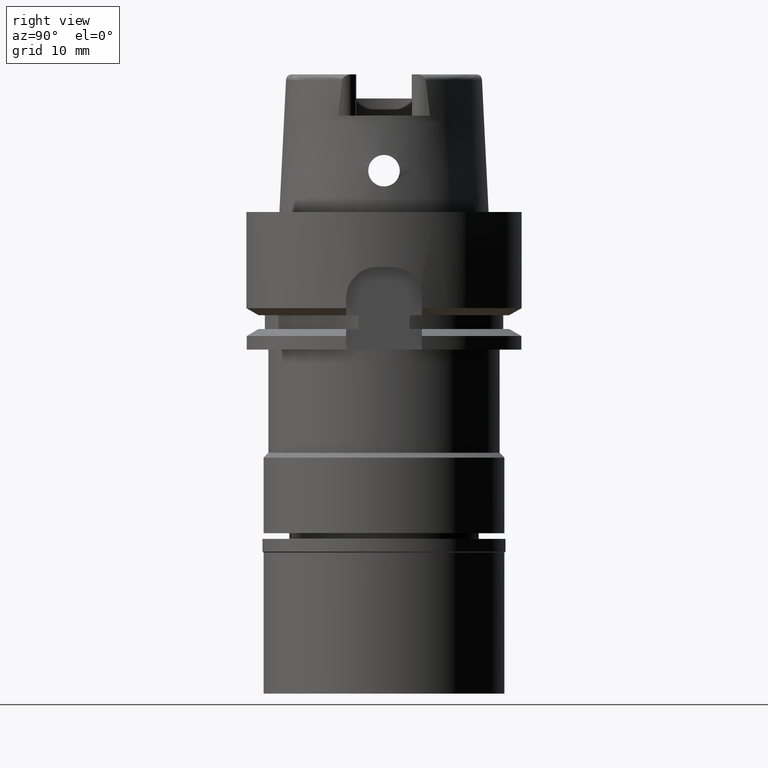
[diagram: clean part render]
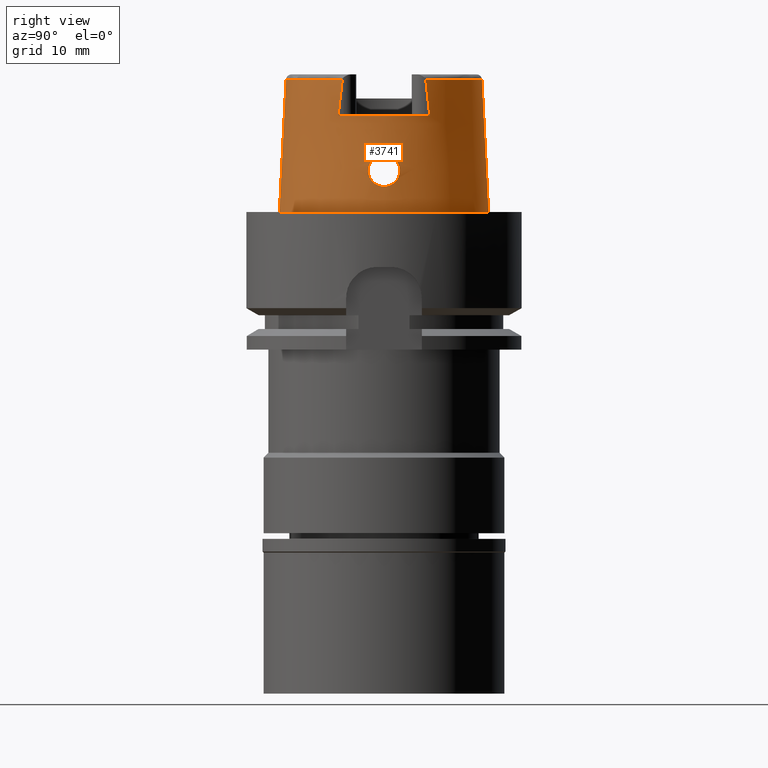
[diagram: same view with one face highlighted and labeled with its STEP entity id]
A machine part, right view. The second image highlights one B-rep face of the part: STEP entity #3741.
In plain terms, the highlighted conical surface has half-angle 2.862 deg.
Its self-contained STEP definition (entity closure, byte-faithful):
#15 = CARTESIAN_POINT ( 'NONE',  ( 14.70427633960028757, 2.242764913340043353, 6.515404003454786874 ) ) ;
#35 = CARTESIAN_POINT ( 'NONE',  ( 14.76237129641157964, 1.005064328801288154, 8.069065966582551042 ) ) ;
#38 = ORIENTED_EDGE ( 'NONE', *, *, #407, .T. ) ;
#58 = CARTESIAN_POINT ( 'NONE',  ( 14.73565761546348796, 1.519454258623613496, 7.727042433410189481 ) ) ;
#62 = B_SPLINE_CURVE_WITH_KNOTS ( 'NONE', 3,
 ( #1196, #2445, #2013, #2802 ),
 .UNSPECIFIED., .F., .F.,
 ( 4, 4 ),
 ( 0.0000000000000000000, 1.000000000000000000 ),
 .UNSPECIFIED. ) ;
#95 = VERTEX_POINT ( 'NONE', #1058 ) ;
#124 = CARTESIAN_POINT ( 'NONE',  ( 14.73733817633101140, -1.491312462989942578, 7.752623123807434347 ) ) ;
#151 = CARTESIAN_POINT ( 'NONE',  ( 14.75365000359263945, -1.190263404321819651, 7.968170412005450842 ) ) ;
#155 = ORIENTED_EDGE ( 'NONE', *, *, #4428, .F. ) ;
#203 = CARTESIAN_POINT ( 'NONE',  ( 14.78499286951999636, -0.1391756145703256231, 8.299999999999998934 ) ) ;
#212 = VERTEX_POINT ( 'NONE', #5254 ) ;
#227 = CARTESIAN_POINT ( 'NONE',  ( 14.74944561823880029, -1.271773632072639160, 7.916402736103134608 ) ) ;
#256 = CARTESIAN_POINT ( 'NONE',  ( 14.91210751178380711, -1.507814773154234622, 4.254671185857885618 ) ) ;
#280 = CARTESIAN_POINT ( 'NONE',  ( 14.97210884702021794, 0.9853782908212629366, 3.918270532093401037 ) ) ;
#283 = CARTESIAN_POINT ( 'NONE',  ( 14.70531919359189388, -2.060537223936308227, 7.022424985088719929 ) ) ;
#300 = EDGE_CURVE ( 'NONE', #4495, #1118, #62, .T. ) ;
#311 = CARTESIAN_POINT ( 'NONE',  ( 14.70192435888373339, -2.185227616521955962, 6.733823491999718414 ) ) ;
#316 = CARTESIAN_POINT ( 'NONE',  ( 0.0000000000000000000, 1.342457523729000028E-14, 14.00000000000000000 ) ) ;
#337 = CARTESIAN_POINT ( 'NONE',  ( 14.83206954418928092, -1.956184319801783644, 4.789992111342566083 ) ) ;
#364 = CARTESIAN_POINT ( 'NONE',  ( 14.70905000973601062, -1.978086552011957933, 7.175936672938100891 ) ) ;
#388 = CARTESIAN_POINT ( 'NONE',  ( 14.70295118534162349, 2.139958611321871373, 6.843012620761741438 ) ) ;
#407 = EDGE_CURVE ( 'NONE', #95, #4495, #3769, .T. ) ;
#416 = CARTESIAN_POINT ( 'NONE',  ( 14.79652018146324188, 2.108368993487279575, 5.080678015603461439 ) ) ;
#445 = CARTESIAN_POINT ( 'NONE',  ( 14.74806480030290601, 1.297723455499729450, 7.898929941508271213 ) ) ;
#501 = DIRECTION ( 'NONE',  ( 0.0000000000000000000, 1.000000000000000000, 0.0000000000000000000 ) ) ;
#536 = CARTESIAN_POINT ( 'NONE',  ( 14.77224878652673112, -0.7505141186887123173, 8.174747007063599469 ) ) ;
#587 = CARTESIAN_POINT ( 'NONE',  ( 14.76993064239802500, -0.8163392600609616911, 8.150418802496492532 ) ) ;
#644 = CARTESIAN_POINT ( 'NONE',  ( 0.0000000000000000000, -14.23797715755999782, 19.23995141520000018 ) ) ;
#668 = CARTESIAN_POINT ( 'NONE',  ( 15.01500049747999910, 0.0000000000000000000, 3.700000000000000178 ) ) ;
#688 = CIRCLE ( 'NONE', #2456, 15.20000663301000010 ) ;
#692 = DIRECTION ( 'NONE',  ( 0.0000000000000000000, 0.0000000000000000000, 1.000000000000000000 ) ) ;
#701 = CARTESIAN_POINT ( 'NONE',  ( 14.77765626216125128, -2.177348013164218887, 5.257069935556764939 ) ) ;
#716 = CIRCLE ( 'NONE', #1421, 14.23797715756000315 ) ;
#727 = CARTESIAN_POINT ( 'NONE',  ( 14.90604676839035037, 1.540011574347540879, 4.291541944447614831 ) ) ;
#749 = CARTESIAN_POINT ( 'NONE',  ( 14.85941152871392212, 1.821130860984883526, 4.593162639233087319 ) ) ;
#752 = CARTESIAN_POINT ( 'NONE',  ( 14.71959265609127954, -2.299973879154861844, 6.035955912776645782 ) ) ;
#776 = CARTESIAN_POINT ( 'NONE',  ( 14.71337117006120287, 1.896365627165534695, 7.303614320927451331 ) ) ;
#778 = CARTESIAN_POINT ( 'NONE',  ( 14.70278707568186682, -2.228687130090102997, 6.587634668131774340 ) ) ;
#784 = CARTESIAN_POINT ( 'NONE',  ( 12.88000000001000167, 6.659963896840999986, 14.00000000000000000 ) ) ;
#806 = CARTESIAN_POINT ( 'NONE',  ( 14.70428665209208496, 2.078673823741274074, 6.992028626465385699 ) ) ;
#830 = CARTESIAN_POINT ( 'NONE',  ( 14.79464834163354325, 2.115599261166682510, 5.097413402629714874 ) ) ;
#851 = FACE_OUTER_BOUND ( 'NONE', #2405, .T. ) ;
#856 = CARTESIAN_POINT ( 'NONE',  ( 14.74847080173831948, 1.290130044920848151, 7.904097045032973057 ) ) ;
#883 = CARTESIAN_POINT ( 'NONE',  ( 14.78499286951999814, 0.2788160877141728777, 8.300000000000004263 ) ) ;
#940 = CARTESIAN_POINT ( 'NONE',  ( 14.75792287674205028, -1.102787470605057552, 8.018733999658982370 ) ) ;
#975 = CARTESIAN_POINT ( 'NONE',  ( 0.0000000000000000000, 14.23797715755999782, 19.23995141520000018 ) ) ;
#1024 = CARTESIAN_POINT ( 'NONE',  ( 14.77731901309395113, -0.5814282938311156057, 8.226675195045524802 ) ) ;
#1058 = CARTESIAN_POINT ( 'NONE',  ( 12.88000000001000167, 6.659963896840999986, 14.00000000000000000 ) ) ;
#1081 = CARTESIAN_POINT ( 'NONE',  ( 14.77214367936816330, -2.195485303206906824, 5.313436087996452173 ) ) ;
#1107 = CARTESIAN_POINT ( 'NONE',  ( 14.93864860366979030, 1.297535571089779349, 4.099461658573544831 ) ) ;
#1109 = CARTESIAN_POINT ( 'NONE',  ( 14.84908536394946843, -1.873857377694586823, 4.664199259538155395 ) ) ;
#1110 = DIRECTION ( 'NONE',  ( 0.9046212760392207120, -0.4262163147243098749, 0.0000000000000000000 ) ) ;
#1114 = CARTESIAN_POINT ( 'NONE',  ( 12.88001670702532309, 6.461541544693172767, 15.82237498387015151 ) ) ;
#1118 = VERTEX_POINT ( 'NONE', #1475 ) ;
#1135 = CARTESIAN_POINT ( 'NONE',  ( 14.90245146643532337, 1.564186574225916448, 4.313532941992140657 ) ) ;
#1139 = CARTESIAN_POINT ( 'NONE',  ( 14.97807143272082087, -0.9089475989131183820, 3.887209802366227152 ) ) ;
#1161 = ORIENTED_EDGE ( 'NONE', *, *, #2483, .T. ) ;
#1167 = CARTESIAN_POINT ( 'NONE',  ( 14.71779329819516668, -2.299087319909310256, 6.074385008131913288 ) ) ;
#1190 = CARTESIAN_POINT ( 'NONE',  ( 14.72897698920656850, 1.629411162252924816, 7.623274758275104368 ) ) ;
#1192 = CARTESIAN_POINT ( 'NONE',  ( 14.79076017643395957, -2.130234140995594494, 5.132725120408807129 ) ) ;
#1196 = CARTESIAN_POINT ( 'NONE',  ( 12.88000000001000167, -6.659963896840999986, 14.00000000000000000 ) ) ;
#1221 = CARTESIAN_POINT ( 'NONE',  ( 14.72851255932737757, 1.637138559092018886, 7.615484661230349950 ) ) ;
#1248 = CARTESIAN_POINT ( 'NONE',  ( 14.72270127388764926, 1.734450797324273985, 7.511579447753967465 ) ) ;
#1271 = CARTESIAN_POINT ( 'NONE',  ( 14.74608431558002231, 1.334530998691152659, 7.873384040785619931 ) ) ;
#1300 = CARTESIAN_POINT ( 'NONE',  ( 14.76710375349723670, 0.8909825969301189419, 8.120416373802415322 ) ) ;
#1308 = CARTESIAN_POINT ( 'NONE',  ( 0.0000000000000000000, -14.23797715755999782, 19.23995141520000018 ) ) ;
#1345 = EDGE_CURVE ( 'NONE', #212, #4934, #3778, .T. ) ;
#1390 = CARTESIAN_POINT ( 'NONE',  ( 14.77403021748278711, -0.6940870227041476825, 8.193120727681970195 ) ) ;
#1409 = AXIS2_PLACEMENT_3D ( 'NONE', #4226, #4684, #501 ) ;
#1421 = AXIS2_PLACEMENT_3D ( 'NONE', #4948, #2855, #1110 ) ;
#1426 = CARTESIAN_POINT ( 'NONE',  ( 14.74980961183667993, -1.264887640985278061, 7.920966464290619236 ) ) ;
#1449 = CARTESIAN_POINT ( 'NONE',  ( 14.72894958168758883, -1.629870767956382638, 7.622812772376184931 ) ) ;
#1475 = CARTESIAN_POINT ( 'NONE',  ( 12.87999235482999794, -6.068467468384000085, 19.23976215321999916 ) ) ;
#1476 = CARTESIAN_POINT ( 'NONE',  ( 14.76871161833036084, -0.8492265415387453276, 8.137520403994860985 ) ) ;
#1502 = CARTESIAN_POINT ( 'NONE',  ( 15.00363948524310409, 0.5093489953450062169, 3.755865049602545191 ) ) ;
#1504 = CARTESIAN_POINT ( 'NONE',  ( 14.81755823113681103, -2.021972739957513365, 4.903166805378700310 ) ) ;
#1528 = CARTESIAN_POINT ( 'NONE',  ( 14.99023704111988131, 0.7471086059046764261, 3.824125380208783564 ) ) ;
#1530 = CARTESIAN_POINT ( 'NONE',  ( 14.75511519428891916, -2.246327419094103828, 5.500375478184067468 ) ) ;
#1557 = CARTESIAN_POINT ( 'NONE',  ( 14.97618292910479454, -0.9317931712362607088, 3.897086156092339770 ) ) ;
#1576 = AXIS2_PLACEMENT_3D ( 'NONE', #316, #3649, #2361 ) ;
#1613 = CARTESIAN_POINT ( 'NONE',  ( 14.78748923745487076, -2.142316646971053284, 5.162992399265044163 ) ) ;
#1635 = CARTESIAN_POINT ( 'NONE',  ( 14.70880742522512286, 2.286018873315687205, 6.294381867631251737 ) ) ;
#1659 = CARTESIAN_POINT ( 'NONE',  ( 14.78499286951999991, -6.884507511411997731E-14, 8.300000000000000711 ) ) ;
#1663 = AXIS2_PLACEMENT_3D ( 'NONE', #2080, #2055, #4195 ) ;
#1668 = CARTESIAN_POINT ( 'NONE',  ( 14.70267205877295780, 2.191728434256521307, 6.698411382279790161 ) ) ;
#1697 = CARTESIAN_POINT ( 'NONE',  ( 14.72911174276449309, 2.296055618505050244, 5.860793903541034133 ) ) ;
#1720 = CARTESIAN_POINT ( 'NONE',  ( 14.76638081780257927, 0.9092272961312098944, 8.112680116027064514 ) ) ;
#1747 = CARTESIAN_POINT ( 'NONE',  ( 14.81265457374395211, 2.042544949903074780, 4.941961106569924489 ) ) ;
#1811 = CARTESIAN_POINT ( 'NONE',  ( 14.72916990477435562, -1.626338018535341323, 7.626355012096240671 ) ) ;
#1838 = CARTESIAN_POINT ( 'NONE',  ( 14.72894415434752879, -1.629958609940861169, 7.622724539448741510 ) ) ;
#1869 = CARTESIAN_POINT ( 'NONE',  ( 14.72949350683535563, -1.621146774688946746, 7.631535178453624724 ) ) ;
#1921 = CARTESIAN_POINT ( 'NONE',  ( 14.76781662056637501, -0.8727020751864694725, 8.128007703535027773 ) ) ;
#1922 = CARTESIAN_POINT ( 'NONE',  ( 0.0000000000000000000, -15.20000663301000010, 1.527666881883999820E-13 ) ) ;
#1977 = CARTESIAN_POINT ( 'NONE',  ( 14.96044055602670042, 1.107340051846581908, 3.978521285920225470 ) ) ;
#1979 = CARTESIAN_POINT ( 'NONE',  ( 14.71466829626354489, -2.295563337640382784, 6.147392662245807493 ) ) ;
#1991 = B_SPLINE_CURVE_WITH_KNOTS ( 'NONE', 3,
 ( #3613, #3226, #5277, #1502, #5307, #4063, #1528, #5382, #4912, #3198, #4971, #280, #1977, #1107, #3174, #4857, #3642, #727, #1135, #2828, #3669, #2852, #4521, #2034, #749, #2439, #4112, #3699, #1747, #3386, #4623, #416, #830, #4548, #2496, #2144, #4171, #5407, #1697, #4600, #2907, #3723, #1635, #15, #3364, #1668, #3307, #2548, #388, #2086, #4996, #806, #3780, #776, #2061, #4578, #1248, #3750, #3836, #5052, #1221, #3413, #4247, #3812, #1190, #2167, #58, #5434, #3341, #2879, #5078, #1271, #5030, #445, #856, #2955, #2466, #4225, #2931, #35, #2519, #4199, #1720, #2115, #1300, #2983, #4654, #883, #2575 ),
 .UNSPECIFIED., .F., .F.,
 ( 4, 2, 2, 1, 1, 2, 2, 2, 2, 2, 1, 2, 2, 2, 2, 2, 1, 2, 2, 2, 2, 2, 2, 2, 2, 1, 1, 2, 2, 2, 2, 1, 1, 1, 1, 1, 2, 2, 2, 2, 2, 1, 1, 2, 2, 2, 2, 1, 1, 2, 2, 4 ),
 ( 0.0000000000000000000, 0.06250000000001444678, 0.09375000000002173262, 0.1093750000000253686, 0.1171875000000271727, 0.1210937500000280748, 0.1250000000000289768, 0.1875000000000427713, 0.2187500000000497657, 0.2343750000000532907, 0.2421875000000550116, 0.2460937500000557332, 0.2500000000000564548, 0.2812500000000622835, 0.3125000000000680567, 0.3437500000000738298, 0.3593750000000767164, 0.3671875000000782152, 0.3750000000000796585, 0.4375000000000913158, 0.4687500000000970890, 0.4843750000000999756, 0.5000000000001028067, 0.5625000000001144640, 0.5937500000001202372, 0.6093750000001230127, 0.6171875000001242340, 0.6210937500001250111, 0.6250000000001257883, 0.6875000000001360023, 0.7187500000001411093, 0.7343750000001435518, 0.7421875000001446621, 0.7460937500001452172, 0.7480468750001454392, 0.7490234375001454392, 0.7495117187501454392, 0.7500000000001454392, 0.7812500000001246780, 0.7968750000001142419, 0.8046875000001090239, 0.8085937500001064704, 0.8105468750001051381, 0.8115234375001044720, 0.8125000000001038059, 0.8437500000000821565, 0.8593750000000711653, 0.8671875000000658362, 0.8710937500000635048, 0.8730468750000623945, 0.8750000000000612843, 1.000000000000000000 ),
 .UNSPECIFIED. ) ;
#2008 = CARTESIAN_POINT ( 'NONE',  ( 14.88469463431914086, -1.675465527418685818, 4.424106824297659557 ) ) ;
#2013 = CARTESIAN_POINT ( 'NONE',  ( 12.87998480870661488, -6.264498832802251727, 17.56875153365083975 ) ) ;
#2034 = CARTESIAN_POINT ( 'NONE',  ( 14.87667304032492410, 1.724871442453030923, 4.476672235042254755 ) ) ;
#2037 = CARTESIAN_POINT ( 'NONE',  ( 14.82860992875789208, -1.972230638254820700, 4.816480848215509702 ) ) ;
#2044 = CARTESIAN_POINT ( 'NONE',  ( 12.88000426036586887, 6.264427330854289266, 17.56902547863803221 ) ) ;
#2055 = DIRECTION ( 'NONE',  ( 0.0000000000000000000, 0.0000000000000000000, -1.000000000000000000 ) ) ;
#2061 = CARTESIAN_POINT ( 'NONE',  ( 14.71591554278349179, 1.851024872962783618, 7.367622282205414486 ) ) ;
#2063 = CARTESIAN_POINT ( 'NONE',  ( 14.70731352311811335, -2.271682336033174820, 6.367490912690039195 ) ) ;
#2080 = CARTESIAN_POINT ( 'NONE',  ( 0.0000000000000000000, 1.342457523729000028E-14, 9.619975707600000092 ) ) ;
#2086 = CARTESIAN_POINT ( 'NONE',  ( 14.70308256921508061, 2.132808860322839006, 6.860941056206876887 ) ) ;
#2115 = CARTESIAN_POINT ( 'NONE',  ( 14.76681654524219134, 0.8982567174901365803, 8.117345143288064335 ) ) ;
#2144 = CARTESIAN_POINT ( 'NONE',  ( 14.74370730846496436, 2.273485309352225148, 5.643646729477820756 ) ) ;
#2167 = CARTESIAN_POINT ( 'NONE',  ( 14.73066773661700957, 1.603002533144479047, 7.651075444105355672 ) ) ;
#2216 = VECTOR ( 'NONE', #3073, 1000.000000000000227 ) ;
#2228 = CARTESIAN_POINT ( 'NONE',  ( 14.74916473909279446, -1.277077397323025387, 7.912876191129118553 ) ) ;
#2252 = CARTESIAN_POINT ( 'NONE',  ( 14.75627668339521215, -1.137262425045223235, 7.999580242457444257 ) ) ;
#2275 = CARTESIAN_POINT ( 'NONE',  ( 14.78353118258170085, -0.2843049012622392846, 8.287342475517155194 ) ) ;
#2331 = CARTESIAN_POINT ( 'NONE',  ( 14.75065032297800549, -1.248876159167588096, 7.931454445034910705 ) ) ;
#2355 = CARTESIAN_POINT ( 'NONE',  ( 14.96725057751258348, -1.032134887418608926, 3.944290136861687390 ) ) ;
#2361 = DIRECTION ( 'NONE',  ( 0.8882768779220027167, 0.4593083802296007434, 0.0000000000000000000 ) ) ;
#2387 = CARTESIAN_POINT ( 'NONE',  ( 14.79801672291820402, -2.103023503670073957, 5.066545273763508384 ) ) ;
#2405 = EDGE_LOOP ( 'NONE', ( #2948, #5432, #1161, #3294, #155, #5232, #4091, #38 ) ) ;
#2414 = CARTESIAN_POINT ( 'NONE',  ( 15.00350684704980075, -0.5889710121722295799, 3.754705037256619971 ) ) ;
#2439 = CARTESIAN_POINT ( 'NONE',  ( 14.85052550205100630, 1.867320722930483567, 4.655168218427476745 ) ) ;
#2441 = CARTESIAN_POINT ( 'NONE',  ( 14.71324047747436126, -2.292924399370714017, 6.183994065468948698 ) ) ;
#2445 = CARTESIAN_POINT ( 'NONE',  ( 12.87999628661345497, -6.461605141698388621, 15.82216425344745758 ) ) ;
#2446 = CARTESIAN_POINT ( 'NONE',  ( 12.88000642478999858, 6.068395837171999929, 19.23995141520000018 ) ) ;
#2456 = AXIS2_PLACEMENT_3D ( 'NONE', #2735, #692, #4079 ) ;
#2461 = FACE_BOUND ( 'NONE', #3546, .T. ) ;
#2466 = CARTESIAN_POINT ( 'NONE',  ( 14.75280450724634917, 1.208753978509257143, 7.958772445188317946 ) ) ;
#2483 = EDGE_CURVE ( 'NONE', #2972, #2486, #5251, .T. ) ;
#2486 = VERTEX_POINT ( 'NONE', #1922 ) ;
#2487 = CARTESIAN_POINT ( 'NONE',  ( 0.0000000000000000000, 15.20000663301000010, 5.684341886080998387E-14 ) ) ;
#2496 = CARTESIAN_POINT ( 'NONE',  ( 14.76150517817750796, 2.230989088431663436, 5.420707234372980743 ) ) ;
#2519 = CARTESIAN_POINT ( 'NONE',  ( 14.76436978913754494, 0.9582207790518214585, 8.090959112074665782 ) ) ;
#2545 = VERTEX_POINT ( 'NONE', #3124 ) ;
#2548 = CARTESIAN_POINT ( 'NONE',  ( 14.70277955824855809, 2.150504096205838600, 6.816077247885977464 ) ) ;
#2575 = CARTESIAN_POINT ( 'NONE',  ( 14.78499286951999991, -6.884507511411997731E-14, 8.300000000000000711 ) ) ;
#2598 = EDGE_CURVE ( 'NONE', #1118, #2972, #716, .T. ) ;
#2666 = CARTESIAN_POINT ( 'NONE',  ( 14.72981229748400800, -1.616027270497286672, 7.636626740827475501 ) ) ;
#2688 = CARTESIAN_POINT ( 'NONE',  ( 14.77914612176681253, -0.5065881320972810409, 8.244784997213507438 ) ) ;
#2735 = CARTESIAN_POINT ( 'NONE',  ( 0.0000000000000000000, 1.342457523729000028E-14, 5.684341886080998387E-14 ) ) ;
#2744 = CARTESIAN_POINT ( 'NONE',  ( 14.76520950478226624, -0.9396943743903586332, 8.100206008043272732 ) ) ;
#2766 = EDGE_CURVE ( 'NONE', #4934, #95, #3102, .T. ) ;
#2772 = CARTESIAN_POINT ( 'NONE',  ( 14.83944436681648682, -1.920884344976056646, 4.734973330218039678 ) ) ;
#2798 = CARTESIAN_POINT ( 'NONE',  ( 14.87062860233185191, -1.757273805534501854, 4.515609537580949073 ) ) ;
#2802 = CARTESIAN_POINT ( 'NONE',  ( 12.87999235482999794, -6.068467468384000085, 19.23976215321999916 ) ) ;
#2804 = VECTOR ( 'NONE', #4002, 1000.000000000000227 ) ;
#2828 = CARTESIAN_POINT ( 'NONE',  ( 14.89875562895217520, 1.588254843427002738, 4.336398399965394113 ) ) ;
#2852 = CARTESIAN_POINT ( 'NONE',  ( 14.89481308743448196, 1.613538811831496833, 4.360920470078221811 ) ) ;
#2854 = CARTESIAN_POINT ( 'NONE',  ( 14.70350606668146831, -2.114575182731917469, 6.904783076964276844 ) ) ;
#2855 = DIRECTION ( 'NONE',  ( 0.0000000000000000000, 0.0000000000000000000, -1.000000000000000000 ) ) ;
#2879 = CARTESIAN_POINT ( 'NONE',  ( 14.74279453232445825, 1.394510676828013107, 7.829319213543520561 ) ) ;
#2882 = CARTESIAN_POINT ( 'NONE',  ( 14.78951381934390774, -2.134870925351762150, 5.144179649888426020 ) ) ;
#2907 = CARTESIAN_POINT ( 'NONE',  ( 14.72320473717248390, 2.300013945574501228, 5.964494725526981789 ) ) ;
#2931 = CARTESIAN_POINT ( 'NONE',  ( 14.76093411337683747, 1.037462528146977814, 8.053070434764304508 ) ) ;
#2948 = ORIENTED_EDGE ( 'NONE', *, *, #300, .T. ) ;
#2955 = CARTESIAN_POINT ( 'NONE',  ( 14.74875900468251899, 1.284725696180258003, 7.907744106703166409 ) ) ;
#2972 = VERTEX_POINT ( 'NONE', #1308 ) ;
#2983 = CARTESIAN_POINT ( 'NONE',  ( 14.76720264229077628, 0.8884696048779606725, 8.121473001126821245 ) ) ;
#3006 = CARTESIAN_POINT ( 'NONE',  ( 12.88000642478999858, 6.068395837171999929, 19.23995141520000018 ) ) ;
#3045 = LINE ( 'NONE', #975, #2804 ) ;
#3072 = CARTESIAN_POINT ( 'NONE',  ( 14.73233375419925117, -1.575112393127596544, 7.676438522019008559 ) ) ;
#3073 = DIRECTION ( 'NONE',  ( 0.0000000000000000000, -0.04993926899656212642, -0.9987522562738413434 ) ) ;
#3099 = CARTESIAN_POINT ( 'NONE',  ( 14.73107783725397191, -1.595554514696325699, 7.656674591391470663 ) ) ;
#3102 = B_SPLINE_CURVE_WITH_KNOTS ( 'NONE', 3,
 ( #2446, #2044, #1114, #784 ),
 .UNSPECIFIED., .F., .F.,
 ( 4, 4 ),
 ( 0.0000000000000000000, 1.000000000000000000 ),
 .UNSPECIFIED. ) ;
#3123 = CARTESIAN_POINT ( 'NONE',  ( 14.72139618041586573, -1.755542573526525318, 7.496569510163651806 ) ) ;
#3124 = CARTESIAN_POINT ( 'NONE',  ( 15.01500049747999910, 0.0000000000000000000, 3.700000000000000178 ) ) ;
#3174 = CARTESIAN_POINT ( 'NONE',  ( 14.93066970023971507, 1.362095945639550720, 4.144870806644763483 ) ) ;
#3176 = CARTESIAN_POINT ( 'NONE',  ( 14.70375658940798580, -2.105287330038593474, 6.926390664454261881 ) ) ;
#3198 = CARTESIAN_POINT ( 'NONE',  ( 14.98232649256040183, 0.8557163737542290427, 3.865089305861577174 ) ) ;
#3200 = CARTESIAN_POINT ( 'NONE',  ( 14.89011896120244316, -1.642687028854354914, 4.390134021954860799 ) ) ;
#3226 = CARTESIAN_POINT ( 'NONE',  ( 15.01500049748000443, 0.1430746711993406972, 3.699999999999999734 ) ) ;
#3228 = CARTESIAN_POINT ( 'NONE',  ( 14.88794867357267115, -1.655848453013716748, 4.403674518562816331 ) ) ;
#3243 = ORIENTED_EDGE ( 'NONE', *, *, #3394, .F. ) ;
#3257 = CARTESIAN_POINT ( 'NONE',  ( 14.73755416610892155, -2.287952457387230076, 5.721217470004223316 ) ) ;
#3283 = CARTESIAN_POINT ( 'NONE',  ( 14.76156744408123522, -2.228555501842248265, 5.425854319304590945 ) ) ;
#3294 = ORIENTED_EDGE ( 'NONE', *, *, #3662, .T. ) ;
#3307 = CARTESIAN_POINT ( 'NONE',  ( 14.70255723605113651, 2.173856954384247420, 6.752946483190014781 ) ) ;
#3341 = CARTESIAN_POINT ( 'NONE',  ( 14.74145168632278668, 1.418516909230966183, 7.810689819456714034 ) ) ;
#3364 = CARTESIAN_POINT ( 'NONE',  ( 14.70330888369035094, 2.224627193725005281, 6.588932765810535663 ) ) ;
#3386 = CARTESIAN_POINT ( 'NONE',  ( 14.80653935019666889, 2.068452204482281065, 4.992980833606138980 ) ) ;
#3394 = EDGE_CURVE ( 'NONE', #2545, #3829, #1991, .T. ) ;
#3413 = CARTESIAN_POINT ( 'NONE',  ( 14.72868777230057091, 1.634222660062892185, 7.618430785905293767 ) ) ;
#3477 = CARTESIAN_POINT ( 'NONE',  ( 14.72904674972185290, -1.628310959077896580, 7.624378492265700302 ) ) ;
#3535 = CARTESIAN_POINT ( 'NONE',  ( 14.72899866985667217, -1.629050198060672638, 7.623637085054038032 ) ) ;
#3546 = EDGE_LOOP ( 'NONE', ( #3243, #4789 ) ) ;
#3613 = CARTESIAN_POINT ( 'NONE',  ( 15.01500049747999910, 0.0000000000000000000, 3.700000000000000178 ) ) ;
#3615 = CARTESIAN_POINT ( 'NONE',  ( 14.97931046617356721, -0.8937569046882440915, 3.880739102396930651 ) ) ;
#3642 = CARTESIAN_POINT ( 'NONE',  ( 14.91310332492956725, 1.491578554832834858, 4.248699990981637420 ) ) ;
#3644 = CARTESIAN_POINT ( 'NONE',  ( 14.95813898432911593, -1.126012150599255301, 3.993241791937571783 ) ) ;
#3649 = DIRECTION ( 'NONE',  ( 0.0000000000000000000, 0.0000000000000000000, -1.000000000000000000 ) ) ;
#3662 = EDGE_CURVE ( 'NONE', #2486, #5148, #688, .T. ) ;
#3669 = CARTESIAN_POINT ( 'NONE',  ( 14.89626939606826461, 1.604271477158498271, 4.351838369915520310 ) ) ;
#3672 = CARTESIAN_POINT ( 'NONE',  ( 14.95142558221937357, -1.189404405358674754, 4.029959945882174210 ) ) ;
#3699 = CARTESIAN_POINT ( 'NONE',  ( 14.82500704708231254, 1.988596419574824914, 4.841885597362960425 ) ) ;
#3702 = CARTESIAN_POINT ( 'NONE',  ( 14.85768483925605921, -1.828954227871980587, 4.603349892599211124 ) ) ;
#3723 = CARTESIAN_POINT ( 'NONE',  ( 14.71399977283505045, 2.299943352515068984, 6.146481960879630613 ) ) ;
#3725 = CARTESIAN_POINT ( 'NONE',  ( 12.88000000001000167, -6.659963896840999986, 14.00000000000000000 ) ) ;
#3741 = ADVANCED_FACE ( 'NONE', ( #851, #2461 ), #3766, .T. ) ;
#3750 = CARTESIAN_POINT ( 'NONE',  ( 14.72572326937893372, 1.683687866725823934, 7.567170409231721351 ) ) ;
#3766 = CONICAL_SURFACE ( 'NONE', #1663, 14.71899189528999941, 0.04996004983832824653 ) ;
#3769 = CIRCLE ( 'NONE', #1576, 14.49998341749000730 ) ;
#3778 = CIRCLE ( 'NONE', #1409, 14.23797715755999782 ) ;
#3780 = CARTESIAN_POINT ( 'NONE',  ( 14.70695050044178132, 2.017590789627600856, 7.114351364740132411 ) ) ;
#3812 = CARTESIAN_POINT ( 'NONE',  ( 14.72892122233142764, 1.630338754915212185, 7.622342610126118245 ) ) ;
#3829 = VERTEX_POINT ( 'NONE', #1659 ) ;
#3836 = CARTESIAN_POINT ( 'NONE',  ( 14.72730057290447547, 1.657333882825532845, 7.594821360649174125 ) ) ;
#3898 = CARTESIAN_POINT ( 'NONE',  ( 14.74232335281342010, -1.405636856705496651, 7.826667567256946789 ) ) ;
#3954 = CARTESIAN_POINT ( 'NONE',  ( 14.76817633258635176, -0.8633131008241671234, 8.131833996418242450 ) ) ;
#4002 = DIRECTION ( 'NONE',  ( 0.0000000000000000000, 0.04993926899656212642, -0.9987522562738413434 ) ) ;
#4030 = CARTESIAN_POINT ( 'NONE',  ( 14.87711162139873622, -1.720352856297304278, 4.472622287793224238 ) ) ;
#4063 = CARTESIAN_POINT ( 'NONE',  ( 14.99369859953580963, 0.6924098575503913056, 3.806367731852710712 ) ) ;
#4065 = CARTESIAN_POINT ( 'NONE',  ( 14.70335177168250773, -2.120652323211010604, 6.890446148762746859 ) ) ;
#4079 = DIRECTION ( 'NONE',  ( 0.0000000000000000000, -1.000000000000000000, 0.0000000000000000000 ) ) ;
#4087 = CARTESIAN_POINT ( 'NONE',  ( 14.92936835592787048, -1.380017842817133467, 4.153784040051897719 ) ) ;
#4091 = ORIENTED_EDGE ( 'NONE', *, *, #2766, .T. ) ;
#4112 = CARTESIAN_POINT ( 'NONE',  ( 14.83340473096628287, 1.949785703269613091, 4.777790969457934800 ) ) ;
#4114 = CARTESIAN_POINT ( 'NONE',  ( 14.72824110891817462, -2.300101298997531796, 5.864734432755099647 ) ) ;
#4171 = CARTESIAN_POINT ( 'NONE',  ( 14.73838464789640668, 2.283673255525828782, 5.717031159084687175 ) ) ;
#4175 = B_SPLINE_CURVE_WITH_KNOTS ( 'NONE', 3,
 ( #5197, #203, #2275, #2688, #1024, #1390, #536, #587, #1476, #3954, #1921, #4833, #2744, #4385, #940, #2252, #151, #5169, #2331, #1426, #227, #4309, #2228, #3898, #124, #3072, #3099, #2666, #1869, #1811, #3477, #4335, #1449, #1838, #4776, #3535, #3123, #4803, #364, #4947, #283, #4523, #3176, #2854, #4065, #5331, #311, #778, #2063, #4973, #2441, #1979, #1167, #752, #4114, #3257, #1530, #3283, #1081, #701, #5279, #1613, #2882, #1192, #2387, #5309, #1504, #4859, #2037, #337, #4499, #4915, #2772, #1109, #3702, #2798, #4030, #2008, #3228, #3200, #4466, #256, #4087, #3672, #3644, #2355, #5384, #1557, #1139, #3615, #4885, #2414, #4435, #668 ),
 .UNSPECIFIED., .F., .F.,
 ( 4, 2, 2, 1, 1, 1, 2, 2, 2, 2, 1, 1, 1, 2, 2, 2, 2, 2, 1, 1, 1, 2, 2, 2, 2, 1, 1, 2, 2, 2, 2, 2, 2, 2, 2, 1, 1, 2, 2, 2, 2, 1, 2, 2, 2, 1, 1, 2, 2, 2, 2, 1, 1, 2, 2, 4 ),
 ( 0.0000000000000000000, 0.06250000000002985112, 0.09375000000004476974, 0.1093750000000523470, 0.1171875000000559969, 0.1210937500000578149, 0.1230468750000587169, 0.1250000000000596190, 0.1562500000000745515, 0.1718750000000817957, 0.1796875000000855982, 0.1835937500000875133, 0.1855468750000884848, 0.1865234375000889289, 0.1875000000000893452, 0.2187500000000972833, 0.2343750000001011413, 0.2421875000001030009, 0.2460937500001044720, 0.2480468750001054157, 0.2490234375001037503, 0.2495117187501036671, 0.2500000000001035283, 0.3125000000001019185, 0.3437500000001010858, 0.3593750000001005862, 0.3671875000001003642, 0.3710937500001000866, 0.3750000000000997535, 0.4375000000000922040, 0.4687500000000882627, 0.4843750000000861533, 0.5000000000000839329, 0.5625000000000750511, 0.5937500000000704992, 0.6093750000000681677, 0.6171875000000669464, 0.6210937500000663913, 0.6250000000000658362, 0.6562500000000607292, 0.6718750000000582867, 0.6796875000000570655, 0.6835937500000562883, 0.6875000000000555112, 0.7187500000000489608, 0.7343750000000455191, 0.7421875000000438538, 0.7460937500000431877, 0.7500000000000424105, 0.8125000000000311973, 0.8437500000000256462, 0.8593750000000227596, 0.8671875000000213163, 0.8710937500000205391, 0.8750000000000198730, 1.000000000000000000 ),
 .UNSPECIFIED. ) ;
#4195 = DIRECTION ( 'NONE',  ( 0.0000000000000000000, -1.000000000000000000, 0.0000000000000000000 ) ) ;
#4199 = CARTESIAN_POINT ( 'NONE',  ( 14.76532971504398262, 0.9352367692666098131, 8.101380475590428176 ) ) ;
#4225 = CARTESIAN_POINT ( 'NONE',  ( 14.75630800062037373, 1.137745803895186203, 8.000310304769886471 ) ) ;
#4226 = CARTESIAN_POINT ( 'NONE',  ( 0.0000000000000000000, 1.459778984583999657E-14, 19.23995141520000018 ) ) ;
#4247 = CARTESIAN_POINT ( 'NONE',  ( 14.72880477828798718, 1.632275782002714504, 7.620394298594169058 ) ) ;
#4309 = CARTESIAN_POINT ( 'NONE',  ( 14.74920213610175779, -1.276369503766169311, 7.913344848174132196 ) ) ;
#4335 = CARTESIAN_POINT ( 'NONE',  ( 14.72897069928876235, -1.629530858522276526, 7.623154133565825497 ) ) ;
#4385 = CARTESIAN_POINT ( 'NONE',  ( 14.76254667721789815, -1.002447926060432870, 8.071426277314202480 ) ) ;
#4428 = EDGE_CURVE ( 'NONE', #212, #5148, #3045, .T. ) ;
#4435 = CARTESIAN_POINT ( 'NONE',  ( 15.01500049748000265, -0.2875970093675397909, 3.699999999999998845 ) ) ;
#4466 = CARTESIAN_POINT ( 'NONE',  ( 14.89105208660082447, -1.637000183586074575, 4.384343375323971337 ) ) ;
#4472 = EDGE_CURVE ( 'NONE', #3829, #2545, #4175, .T. ) ;
#4495 = VERTEX_POINT ( 'NONE', #3725 ) ;
#4499 = CARTESIAN_POINT ( 'NONE',  ( 14.83564924807491181, -1.939153593823936372, 4.763150147672264190 ) ) ;
#4521 = CARTESIAN_POINT ( 'NONE',  ( 14.88524216259900612, 1.673869351451245713, 4.420800719742880247 ) ) ;
#4523 = CARTESIAN_POINT ( 'NONE',  ( 14.70447470403319024, -2.082382290135963654, 6.977502135432841257 ) ) ;
#4548 = CARTESIAN_POINT ( 'NONE',  ( 14.77581027532841418, 2.186694228972043685, 5.268270867414043934 ) ) ;
#4578 = CARTESIAN_POINT ( 'NONE',  ( 14.72033832614064863, 1.774694195072901826, 7.463602220807436183 ) ) ;
#4600 = CARTESIAN_POINT ( 'NONE',  ( 14.72500900753388109, 2.299249273270764782, 5.931425078025463371 ) ) ;
#4623 = CARTESIAN_POINT ( 'NONE',  ( 14.80051564633222938, 2.092639537947929451, 5.045415017973555294 ) ) ;
#4654 = CARTESIAN_POINT ( 'NONE',  ( 14.77912392857840373, 0.5828703215823062278, 8.248662934585640372 ) ) ;
#4684 = DIRECTION ( 'NONE',  ( 0.0000000000000000000, 0.0000000000000000000, -1.000000000000000000 ) ) ;
#4776 = CARTESIAN_POINT ( 'NONE',  ( 14.72894134124535981, -1.630004321465590378, 7.622678622849567098 ) ) ;
#4789 = ORIENTED_EDGE ( 'NONE', *, *, #4472, .F. ) ;
#4803 = CARTESIAN_POINT ( 'NONE',  ( 14.71548080446559936, -1.856546455237253257, 7.365960879231568725 ) ) ;
#4833 = CARTESIAN_POINT ( 'NONE',  ( 14.76759282135283335, -0.8784873959007321043, 8.125623459988995378 ) ) ;
#4857 = CARTESIAN_POINT ( 'NONE',  ( 14.91762896612794442, 1.459180112720435574, 4.221659250612297853 ) ) ;
#4859 = CARTESIAN_POINT ( 'NONE',  ( 14.82185081583405939, -2.003074697910550928, 4.868922263044074050 ) ) ;
#4885 = CARTESIAN_POINT ( 'NONE',  ( 14.97980119303751323, -0.8876784351059042733, 3.878179336099063068 ) ) ;
#4912 = CARTESIAN_POINT ( 'NONE',  ( 14.98370224013596363, 0.8376696992199921254, 3.857944057857876530 ) ) ;
#4915 = CARTESIAN_POINT ( 'NONE',  ( 14.83806240365515450, -1.927575721372196238, 4.745182859528971342 ) ) ;
#4934 = VERTEX_POINT ( 'NONE', #3006 ) ;
#4947 = CARTESIAN_POINT ( 'NONE',  ( 14.70731345635878640, -2.013636645086462007, 7.113522997970052941 ) ) ;
#4948 = CARTESIAN_POINT ( 'NONE',  ( 0.0000000000000000000, 1.459778984583999657E-14, 19.23995141520000018 ) ) ;
#4971 = CARTESIAN_POINT ( 'NONE',  ( 14.98146799912861660, 0.8667505241464125154, 3.869553935214373741 ) ) ;
#4973 = CARTESIAN_POINT ( 'NONE',  ( 14.70936106763670814, -2.282325874579429481, 6.293961003629046758 ) ) ;
#4996 = CARTESIAN_POINT ( 'NONE',  ( 14.70317394866275507, 2.128405321339452261, 6.871750769404937564 ) ) ;
#5030 = CARTESIAN_POINT ( 'NONE',  ( 14.74746059064535508, 1.309000756746739436, 7.891206140831266147 ) ) ;
#5052 = CARTESIAN_POINT ( 'NONE',  ( 14.72810580111224965, 1.643911431246223742, 7.608604480966466355 ) ) ;
#5078 = CARTESIAN_POINT ( 'NONE',  ( 14.74496216118514269, 1.355092497235884874, 7.858491734483023627 ) ) ;
#5148 = VERTEX_POINT ( 'NONE', #2487 ) ;
#5169 = CARTESIAN_POINT ( 'NONE',  ( 14.75229731624577845, -1.217085292014718156, 7.951795604897482050 ) ) ;
#5197 = CARTESIAN_POINT ( 'NONE',  ( 14.78499286951999991, -6.884507511411997731E-14, 8.300000000000000711 ) ) ;
#5232 = ORIENTED_EDGE ( 'NONE', *, *, #1345, .T. ) ;
#5251 = LINE ( 'NONE', #644, #2216 ) ;
#5254 = CARTESIAN_POINT ( 'NONE',  ( 0.0000000000000000000, 14.23797715755999782, 19.23995141520000018 ) ) ;
#5277 = CARTESIAN_POINT ( 'NONE',  ( 15.01216024442078201, 0.2893524015284524298, 3.713389520196510141 ) ) ;
#5279 = CARTESIAN_POINT ( 'NONE',  ( 14.78448042276499663, -2.153271361086720237, 5.191215242668986818 ) ) ;
#5307 = CARTESIAN_POINT ( 'NONE',  ( 15.00008916891907695, 0.5827676808593295066, 3.773748085928791074 ) ) ;
#5309 = CARTESIAN_POINT ( 'NONE',  ( 14.80532094880093652, -2.074184784260277414, 5.003293045794809935 ) ) ;
#5331 = CARTESIAN_POINT ( 'NONE',  ( 14.70329731928839401, -2.122891862972885679, 6.885111733794631483 ) ) ;
#5382 = CARTESIAN_POINT ( 'NONE',  ( 14.98573257728376795, 0.8105661619712180022, 3.847411101481807094 ) ) ;
#5384 = CARTESIAN_POINT ( 'NONE',  ( 14.97156674660902631, -0.9854958979347185899, 3.921344386826397521 ) ) ;
#5407 = CARTESIAN_POINT ( 'NONE',  ( 14.73131560104703297, 2.293625882896853430, 5.825102787218170874 ) ) ;
#5432 = ORIENTED_EDGE ( 'NONE', *, *, #2598, .T. ) ;
#5434 = CARTESIAN_POINT ( 'NONE',  ( 14.73772986803413154, 1.484164813606936306, 7.757955113842360362 ) ) ;